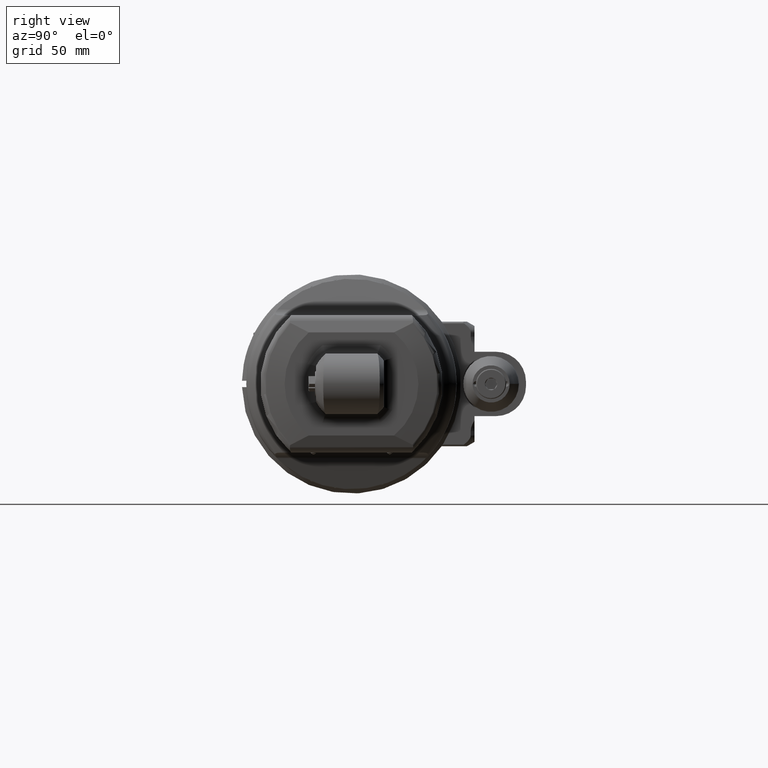
[diagram: clean part render]
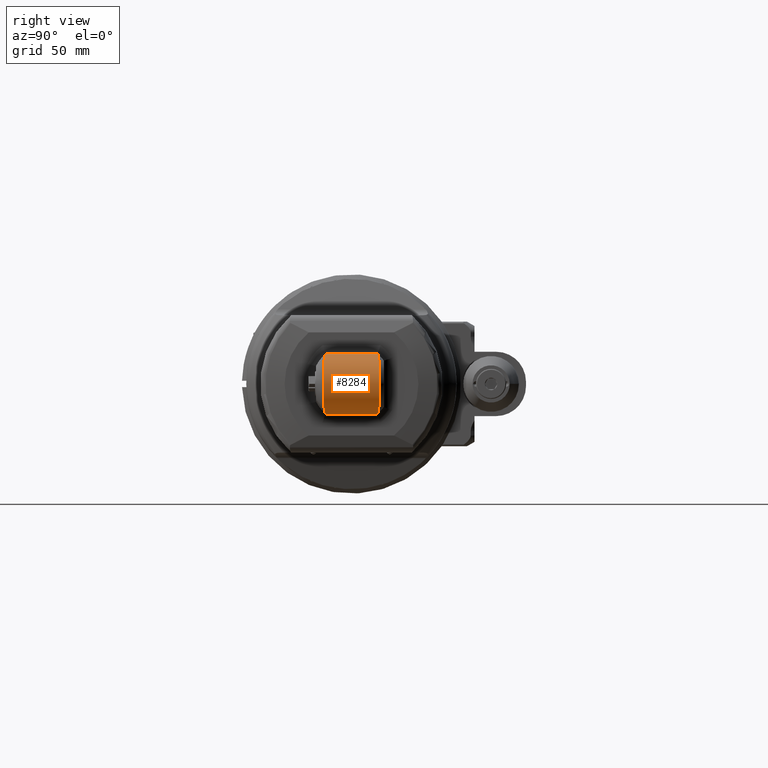
[diagram: same view with one face highlighted and labeled with its STEP entity id]
A machine part, right view. The second image highlights one B-rep face of the part: STEP entity #8284.
In plain terms, the highlighted cylindrical surface (edge-blend (fillet) strip) has radius 14 mm, axis along (-0, 1, 0).
Its self-contained STEP definition (entity closure, byte-faithful):
#944=FACE_OUTER_BOUND('',#1483,.T.);
#1483=EDGE_LOOP('',(#7055,#7056,#7057,#7058,#7059,#7060,#7061,#7062));
#2112=B_SPLINE_CURVE_WITH_KNOTS('',3,(#44491,#44492,#44493,#44494),
 .UNSPECIFIED.,.F.,.F.,(4,4),(4.37184999522846,4.47188376184897),
 .UNSPECIFIED.);
#2113=B_SPLINE_CURVE_WITH_KNOTS('',3,(#44507,#44508,#44509,#44510),
 .UNSPECIFIED.,.F.,.F.,(4,4),(-0.100033766637378,-1.91313631603407E-11),
 .UNSPECIFIED.);
#2114=B_SPLINE_CURVE_WITH_KNOTS('',3,(#44512,#44513,#44514,#44515,#44516,
#44517,#44518,#44519,#44520,#44521,#44522,#44523,#44524,#44525,#44526,#44527,
#44528,#44529,#44530),.UNSPECIFIED.,.F.,.F.,(4,2,2,2,3,2,2,2,4),(6.43888666115844,
6.86876915156769,7.39791397146053,7.9251713443796,8.45242871729867,8.97968609021773,
9.5069434631368,10.0360882830296,10.4659707732771),.UNSPECIFIED.);
#2115=B_SPLINE_CURVE_WITH_KNOTS('',3,(#44531,#44532,#44533,#44534),
 .UNSPECIFIED.,.F.,.F.,(4,4),(4.37184999506366,4.47188376185584),
 .UNSPECIFIED.);
#2116=B_SPLINE_CURVE_WITH_KNOTS('',3,(#44536,#44537,#44538,#44539,#44540,
#44541,#44542,#44543,#44544,#44545,#44546,#44547,#44548,#44549,#44550,#44551,
#44552,#44553,#44554),.UNSPECIFIED.,.F.,.F.,(4,2,2,2,3,2,2,2,4),(6.43888666115844,
6.86876915156769,7.39791397146053,7.9251713443796,8.45242871729867,8.97968609021773,
9.5069434631368,10.0360882830296,10.465970773284),.UNSPECIFIED.);
#2117=B_SPLINE_CURVE_WITH_KNOTS('',3,(#44555,#44556,#44557,#44558),
 .UNSPECIFIED.,.F.,.F.,(4,4),(-7.10542605778976E-15,0.100033766795159),
 .UNSPECIFIED.);
#2546=LINE('',#44498,#3128);
#2549=LINE('',#44505,#3131);
#3128=VECTOR('',#10940,0.952234940047244);
#3131=VECTOR('',#10945,0.952234812763386);
#3881=VERTEX_POINT('',#44488);
#3882=VERTEX_POINT('',#44490);
#3883=VERTEX_POINT('',#44497);
#3885=VERTEX_POINT('',#44503);
#3886=VERTEX_POINT('',#44504);
#3887=VERTEX_POINT('',#44506);
#3888=VERTEX_POINT('',#44511);
#3889=VERTEX_POINT('',#44535);
#4978=EDGE_CURVE('',#3881,#3882,#2112,.T.);
#4980=EDGE_CURVE('',#3883,#3882,#2546,.T.);
#4983=EDGE_CURVE('',#3885,#3886,#2549,.T.);
#4984=EDGE_CURVE('',#3887,#3886,#2113,.T.);
#4985=EDGE_CURVE('',#3888,#3887,#2114,.F.);
#4986=EDGE_CURVE('',#3888,#3883,#2115,.T.);
#4987=EDGE_CURVE('',#3881,#3889,#2116,.T.);
#4988=EDGE_CURVE('',#3885,#3889,#2117,.T.);
#7055=ORIENTED_EDGE('',*,*,#4983,.T.);
#7056=ORIENTED_EDGE('',*,*,#4984,.F.);
#7057=ORIENTED_EDGE('',*,*,#4985,.F.);
#7058=ORIENTED_EDGE('',*,*,#4986,.T.);
#7059=ORIENTED_EDGE('',*,*,#4980,.T.);
#7060=ORIENTED_EDGE('',*,*,#4978,.F.);
#7061=ORIENTED_EDGE('',*,*,#4987,.T.);
#7062=ORIENTED_EDGE('',*,*,#4988,.F.);
#7897=CYLINDRICAL_SURFACE('',#9089,0.551181102362205);
#8284=ADVANCED_FACE('',(#944),#7897,.T.);
#9089=AXIS2_PLACEMENT_3D('',#44502,#10943,#10944);
#10940=DIRECTION('',(2.534676339001E-12,1.,-1.613776192143E-8));
#10943=DIRECTION('center_axis',(0.,1.,0.));
#10944=DIRECTION('ref_axis',(1.,0.,0.));
#10945=DIRECTION('',(7.618131155415E-12,-1.,1.713948376878E-8));
#44488=CARTESIAN_POINT('',(5.21515748031496,0.477742562972898,-0.549773230069644));
#44490=CARTESIAN_POINT('',(5.17578740158145,0.47611750776816,-0.551181126813653));
#44491=CARTESIAN_POINT('Ctrl Pts',(5.21515748031496,0.477742562972899,-0.549773230069644));
#44492=CARTESIAN_POINT('Ctrl Pts',(5.20205534898798,0.476662835140408,-0.550711493182131));
#44493=CARTESIAN_POINT('Ctrl Pts',(5.1889151924721,0.476117583560939,-0.551181102362205));
#44494=CARTESIAN_POINT('Ctrl Pts',(5.1757874015748,0.476117583560939,-0.551181102362205));
#44497=CARTESIAN_POINT('',(5.17578740157874,-0.476117546543539,-0.551181116568992));
#44498=CARTESIAN_POINT('',(5.17578740157874,-0.476117509559843,-0.551181123672441));
#44502=CARTESIAN_POINT('Origin',(5.1757874015748,0.159448818897638,0.));
#44503=CARTESIAN_POINT('',(5.1757874015748,0.476117513283342,0.551181123064916));
#44504=CARTESIAN_POINT('',(5.17578740158233,-0.476117512753616,0.551181118153788));
#44505=CARTESIAN_POINT('',(5.1757874015748,0.476117441624016,0.551181133416142));
#44506=CARTESIAN_POINT('',(5.21515748031496,-0.477742562972897,0.549773230069643));
#44507=CARTESIAN_POINT('Ctrl Pts',(5.21515748031496,-0.477742562972896,
0.549773230069644));
#44508=CARTESIAN_POINT('Ctrl Pts',(5.20205534898797,-0.476662835140405,
0.550711493182131));
#44509=CARTESIAN_POINT('Ctrl Pts',(5.1889151924721,-0.476117583560936,0.551181102362205));
#44510=CARTESIAN_POINT('Ctrl Pts',(5.1757874015748,-0.476117583560936,0.551181102362205));
#44511=CARTESIAN_POINT('',(5.21515748037898,-0.477742562983331,-0.549773230060577));
#44512=CARTESIAN_POINT('Ctrl Pts',(5.21515748031496,-0.477742562972897,
0.549773230069644));
#44513=CARTESIAN_POINT('Ctrl Pts',(5.27250098841434,-0.482468159149761,
0.545666776161686));
#44514=CARTESIAN_POINT('Ctrl Pts',(5.3315806325408,-0.487262443020265,0.532070692444618));
#44515=CARTESIAN_POINT('Ctrl Pts',(5.45472589341751,-0.497122909730752,
0.481043871791268));
#44516=CARTESIAN_POINT('Ctrl Pts',(5.51677233503253,-0.501997711935118,
0.438562960447455));
#44517=CARTESIAN_POINT('Ctrl Pts',(5.61459428869328,-0.50961172989346,0.340620720166929));
#44518=CARTESIAN_POINT('Ctrl Pts',(5.65695377385532,-0.512864199897527,
0.278699311498708));
#44519=CARTESIAN_POINT('Ctrl Pts',(5.71314146320568,-0.517159450238063,
0.142986064237552));
#44520=CARTESIAN_POINT('Ctrl Pts',(5.72696850393701,-0.518206558310558,
0.0691938809605076));
#44521=CARTESIAN_POINT('Ctrl Pts',(5.72696850393701,-0.518206558310558,
0.));
#44522=CARTESIAN_POINT('Ctrl Pts',(5.72696850393701,-0.518206558310558,
-0.0691938809605076));
#44523=CARTESIAN_POINT('Ctrl Pts',(5.71314146320568,-0.517159450238063,
-0.142986064237552));
#44524=CARTESIAN_POINT('Ctrl Pts',(5.65695377385532,-0.512864199897527,
-0.278699311498708));
#44525=CARTESIAN_POINT('Ctrl Pts',(5.61459428869328,-0.50961172989346,-0.340620720166929));
#44526=CARTESIAN_POINT('Ctrl Pts',(5.51677233503253,-0.501997711935118,
-0.438562960447455));
#44527=CARTESIAN_POINT('Ctrl Pts',(5.45472589341751,-0.497122909730751,
-0.481043871791268));
#44528=CARTESIAN_POINT('Ctrl Pts',(5.33158063256159,-0.487262443021929,
-0.532070692436007));
#44529=CARTESIAN_POINT('Ctrl Pts',(5.27250098845887,-0.482468159153377,
-0.545666776151708));
#44530=CARTESIAN_POINT('Ctrl Pts',(5.21515748037973,-0.477742562978235,
-0.549773230065005));
#44531=CARTESIAN_POINT('Ctrl Pts',(5.21515748037972,-0.477742562978236,
-0.549773230065006));
#44532=CARTESIAN_POINT('Ctrl Pts',(5.20205534903127,-0.476662835142212,
-0.550711493180581));
#44533=CARTESIAN_POINT('Ctrl Pts',(5.18891519249373,-0.476117583560939,
-0.551181102362205));
#44534=CARTESIAN_POINT('Ctrl Pts',(5.1757874015748,-0.476117583560939,-0.551181102362205));
#44535=CARTESIAN_POINT('',(5.21515748037625,0.477742562982885,0.549773230060964));
#44536=CARTESIAN_POINT('Ctrl Pts',(5.21515748031496,0.477742562972897,-0.549773230069643));
#44537=CARTESIAN_POINT('Ctrl Pts',(5.27250098841435,0.482468159149761,-0.545666776161686));
#44538=CARTESIAN_POINT('Ctrl Pts',(5.33158063254081,0.487262443020265,-0.532070692444618));
#44539=CARTESIAN_POINT('Ctrl Pts',(5.45472589341751,0.497122909730751,-0.481043871791268));
#44540=CARTESIAN_POINT('Ctrl Pts',(5.51677233503253,0.501997711935118,-0.438562960447455));
#44541=CARTESIAN_POINT('Ctrl Pts',(5.61459428869328,0.50961172989346,-0.340620720166929));
#44542=CARTESIAN_POINT('Ctrl Pts',(5.65695377385532,0.512864199897527,-0.278699311498708));
#44543=CARTESIAN_POINT('Ctrl Pts',(5.71314146320568,0.517159450238063,-0.142986064237552));
#44544=CARTESIAN_POINT('Ctrl Pts',(5.72696850393701,0.518206558310558,-0.0691938809605077));
#44545=CARTESIAN_POINT('Ctrl Pts',(5.72696850393701,0.518206558310558,0.));
#44546=CARTESIAN_POINT('Ctrl Pts',(5.72696850393701,0.518206558310558,0.0691938809605076));
#44547=CARTESIAN_POINT('Ctrl Pts',(5.71314146320568,0.517159450238063,0.142986064237552));
#44548=CARTESIAN_POINT('Ctrl Pts',(5.65695377385532,0.512864199897527,0.278699311498708));
#44549=CARTESIAN_POINT('Ctrl Pts',(5.61459428869328,0.50961172989346,0.340620720166929));
#44550=CARTESIAN_POINT('Ctrl Pts',(5.51677233503253,0.501997711935118,0.438562960447455));
#44551=CARTESIAN_POINT('Ctrl Pts',(5.45472589341751,0.497122909730752,0.481043871791268));
#44552=CARTESIAN_POINT('Ctrl Pts',(5.3315806325607,0.487262443021858,0.532070692436374));
#44553=CARTESIAN_POINT('Ctrl Pts',(5.27250098845697,0.482468159153223,0.545666776152133));
#44554=CARTESIAN_POINT('Ctrl Pts',(5.21515748037697,0.477742562978007,0.549773230065203));
#44555=CARTESIAN_POINT('Ctrl Pts',(5.1757874015748,0.476117583560936,0.551181102362205));
#44556=CARTESIAN_POINT('Ctrl Pts',(5.1889151924928,0.476117583560936,0.551181102362205));
#44557=CARTESIAN_POINT('Ctrl Pts',(5.20205534902943,0.476662835142132,0.550711493180647));
#44558=CARTESIAN_POINT('Ctrl Pts',(5.21515748037696,0.477742562978005,0.549773230065204));